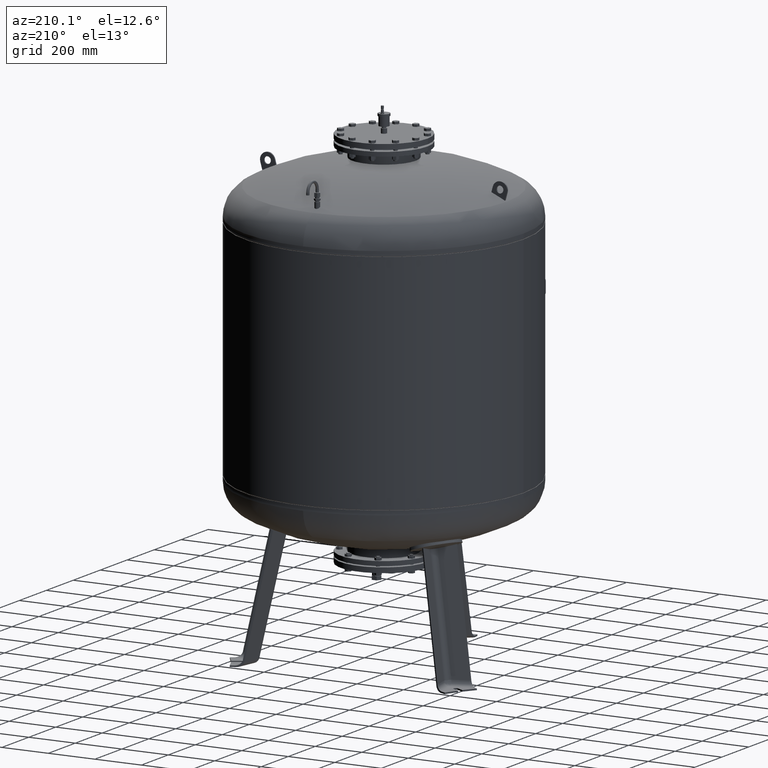
[diagram: clean part render]
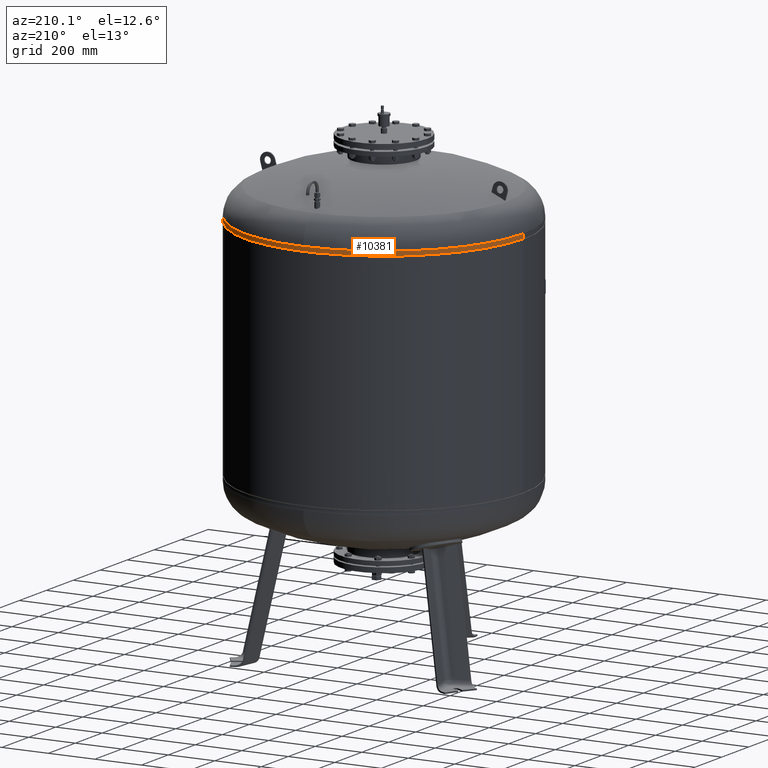
[diagram: same view with one face highlighted and labeled with its STEP entity id]
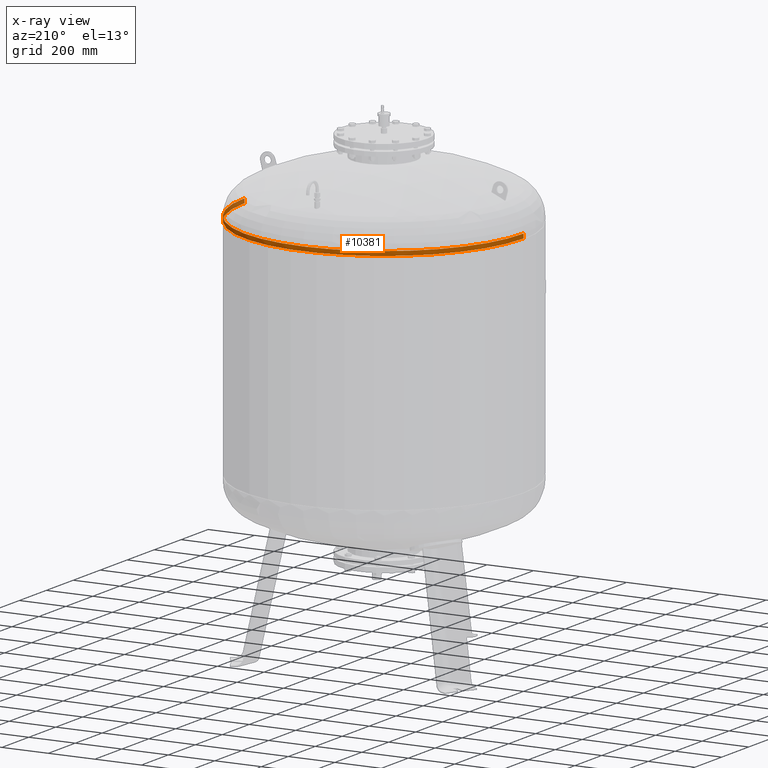
[diagram: x-ray of the same camera — body ghosted, the highlighted face saturated]
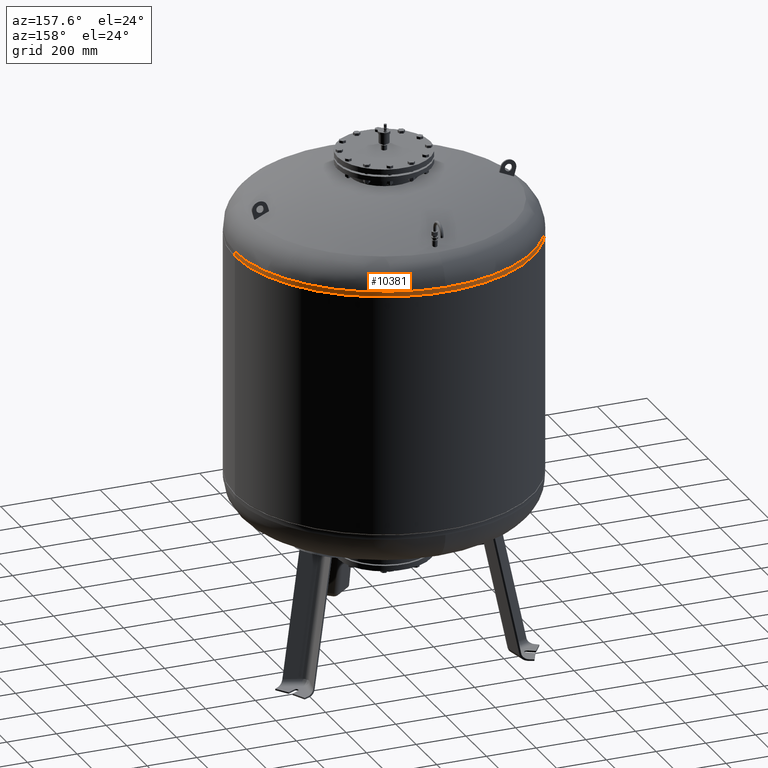
[diagram: same view with one face highlighted and labeled with its STEP entity id]
A machine part, auxiliary view. The second image highlights one B-rep face of the part: STEP entity #10381.
The next image is the same camera in x-ray: the body ghosted, the highlighted face saturated — about 5% of this face is hidden behind the body in this view.
A second angle (auxiliary view) of the same face is appended — the face is thin or edge-on in the first view.
In plain terms, the highlighted cylindrical surface (partial cylindrical patch) has radius 600 mm, axis along (0, -0, -1).
Its self-contained STEP definition (entity closure, byte-faithful):
#10331=CARTESIAN_POINT('',(6.869496E-015,-4.510566E-014,1694.456228716863700));
#10332=DIRECTION('',(2.797667E-017,-1.836970E-016,-1.0));
#10333=DIRECTION('',(1.0,0.0,0.0));
#10334=AXIS2_PLACEMENT_3D('',#10331,#10332,#10333);
#10335=CYLINDRICAL_SURFACE('',#10334,599.999999999999890);
#10336=CARTESIAN_POINT('',(600.000000000000110,-4.684274E-014,1685.0));
#10337=VERTEX_POINT('',#10336);
#10338=CARTESIAN_POINT('',(600.0,-4.336858E-014,1703.912457433727700));
#10339=VERTEX_POINT('',#10338);
#10340=CARTESIAN_POINT('',(600.000000000000110,-4.684274E-014,1685.0));
#10341=DIRECTION('',(0.0,0.0,1.0));
#10342=VECTOR('',#10341,18.912457433727695);
#10343=LINE('',#10340,#10342);
#10344=EDGE_CURVE('',#10337,#10339,#10343,.T.);
#10345=ORIENTED_EDGE('',*,*,#10344,.F.);
#10346=CARTESIAN_POINT('',(-599.999999999999890,2.663364E-014,1685.0));
#10347=VERTEX_POINT('',#10346);
#10348=CARTESIAN_POINT('',(7.134050E-015,-4.684274E-014,1685.0));
#10349=DIRECTION('',(0.0,0.0,-1.0));
#10350=DIRECTION('',(1.0,0.0,0.0));
#10351=AXIS2_PLACEMENT_3D('',#10348,#10349,#10350);
#10352=CIRCLE('',#10351,600.0);
#10353=EDGE_CURVE('',#10347,#10337,#10352,.T.);
#10354=ORIENTED_EDGE('',*,*,#10353,.F.);
#10355=CARTESIAN_POINT('',(-599.999999999999890,3.010780E-014,1703.912457433727700));
#10356=VERTEX_POINT('',#10355);
#10357=CARTESIAN_POINT('',(-599.999999999999890,2.663364E-014,1685.0));
#10358=DIRECTION('',(0.0,0.0,1.0));
#10359=VECTOR('',#10358,18.912457433727695);
#10360=LINE('',#10357,#10359);
#10361=EDGE_CURVE('',#10347,#10356,#10360,.T.);
#10362=ORIENTED_EDGE('',*,*,#10361,.T.);
#10363=CARTESIAN_POINT('',(1.156183E-013,600.0,1703.912457433727700));
#10364=VERTEX_POINT('',#10363);
#10365=CARTESIAN_POINT('',(6.604942E-015,-4.336858E-014,1703.912457433727700));
#10366=DIRECTION('',(0.0,0.0,-1.0));
#10367=DIRECTION('',(1.0,0.0,0.0));
#10368=AXIS2_PLACEMENT_3D('',#10365,#10366,#10367);
#10369=CIRCLE('',#10368,600.0);
#10370=EDGE_CURVE('',#10356,#10364,#10369,.T.);
#10371=ORIENTED_EDGE('',*,*,#10370,.T.);
#10372=CARTESIAN_POINT('',(6.604942E-015,-4.336858E-014,1703.912457433727700));
#10373=DIRECTION('',(0.0,0.0,-1.0));
#10374=DIRECTION('',(1.0,0.0,0.0));
#10375=AXIS2_PLACEMENT_3D('',#10372,#10373,#10374);
#10376=CIRCLE('',#10375,600.0);
#10377=EDGE_CURVE('',#10364,#10339,#10376,.T.);
#10378=ORIENTED_EDGE('',*,*,#10377,.T.);
#10379=EDGE_LOOP('',(#10345,#10354,#10362,#10371,#10378));
#10380=FACE_OUTER_BOUND('',#10379,.T.);
#10381=ADVANCED_FACE('',(#10380),#10335,.T.);